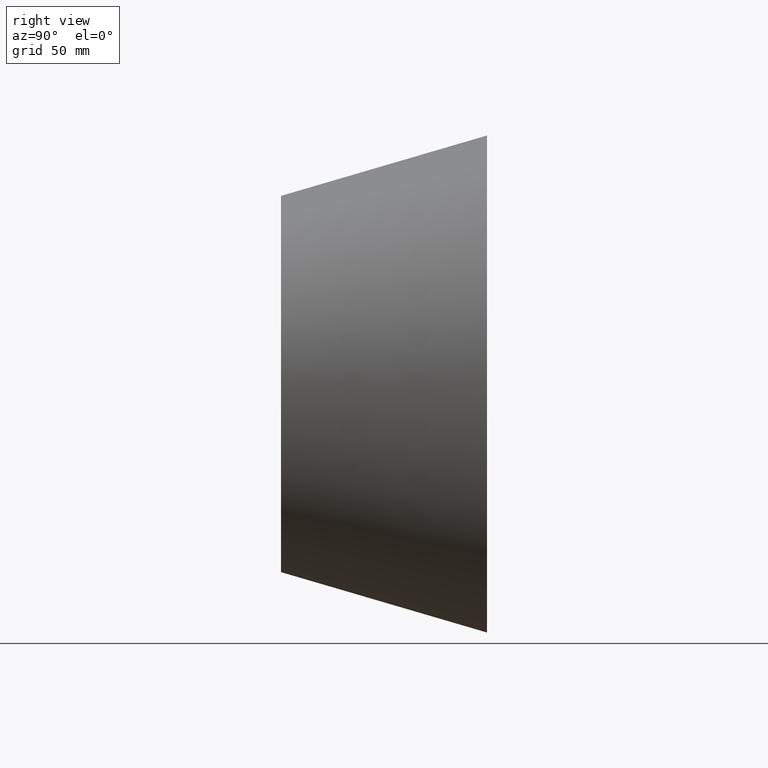
[diagram: clean part render]
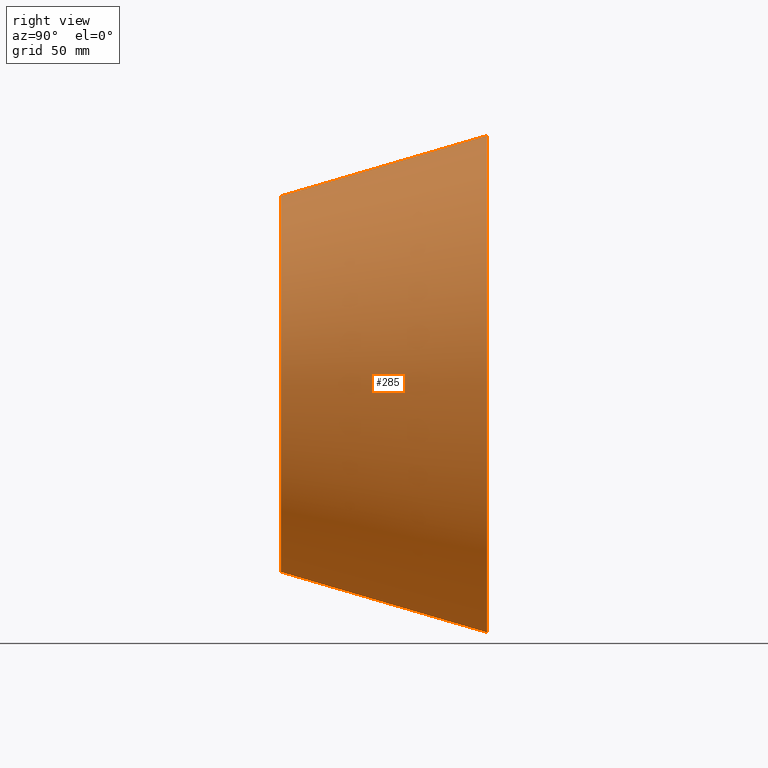
[diagram: same view with one face highlighted and labeled with its STEP entity id]
A machine part, right view. The second image highlights one B-rep face of the part: STEP entity #285.
In plain terms, the highlighted conical surface has half-angle 16.336 deg.
Its self-contained STEP definition (entity closure, byte-faithful):
#10 = VERTEX_POINT ( 'NONE', #46 ) ;
#11 = AXIS2_PLACEMENT_3D ( 'NONE', #272, #89, #288 ) ;
#12 = DIRECTION ( 'NONE',  ( 3.444569382563940100E-017, 0.9596285438852135700, -0.2812704352767004800 ) ) ;
#14 = CIRCLE ( 'NONE', #164, 132.5000000000000000 ) ;
#19 = CARTESIAN_POINT ( 'NONE',  ( 2.143131898507867900E-014, 144.9999999999999400, -175.0000000000000000 ) ) ;
#24 = CIRCLE ( 'NONE', #68, 175.0000000000000000 ) ;
#33 = ORIENTED_EDGE ( 'NONE', *, *, #160, .F. ) ;
#46 = CARTESIAN_POINT ( 'NONE',  ( 2.143131898507867900E-014, 144.9999999999999400, -175.0000000000000000 ) ) ;
#48 = DIRECTION ( 'NONE',  ( -0.0000000000000000000, -1.000000000000000000, -0.0000000000000000000 ) ) ;
#68 = AXIS2_PLACEMENT_3D ( 'NONE', #169, #48, #297 ) ;
#74 = CARTESIAN_POINT ( 'NONE',  ( 0.0000000000000000000, 144.9999999999999400, 175.0000000000000000 ) ) ;
#89 = DIRECTION ( 'NONE',  ( 0.0000000000000000000, 1.000000000000000000, 0.0000000000000000000 ) ) ;
#105 = DIRECTION ( 'NONE',  ( 0.0000000000000000000, 0.0000000000000000000, -1.000000000000000000 ) ) ;
#119 = CARTESIAN_POINT ( 'NONE',  ( 0.0000000000000000000, 144.9999999999999400, 175.0000000000000000 ) ) ;
#132 = FACE_OUTER_BOUND ( 'NONE', #257, .T. ) ;
#138 = DIRECTION ( 'NONE',  ( -0.0000000000000000000, -1.000000000000000000, -0.0000000000000000000 ) ) ;
#143 = VECTOR ( 'NONE', #261, 1000.000000000000100 ) ;
#160 = EDGE_CURVE ( 'NONE', #312, #284, #230, .T. ) ;
#164 = AXIS2_PLACEMENT_3D ( 'NONE', #290, #138, #105 ) ;
#169 = CARTESIAN_POINT ( 'NONE',  ( 0.0000000000000000000, 144.9999999999999400, 0.0000000000000000000 ) ) ;
#170 = EDGE_CURVE ( 'NONE', #318, #312, #14, .T. ) ;
#183 = ORIENTED_EDGE ( 'NONE', *, *, #191, .T. ) ;
#191 = EDGE_CURVE ( 'NONE', #318, #10, #195, .T. ) ;
#195 = LINE ( 'NONE', #19, #277 ) ;
#230 = LINE ( 'NONE', #74, #143 ) ;
#257 = EDGE_LOOP ( 'NONE', ( #323, #183, #265, #33 ) ) ;
#261 = DIRECTION ( 'NONE',  ( 0.0000000000000000000, 0.9596285438852135700, 0.2812704352767004800 ) ) ;
#265 = ORIENTED_EDGE ( 'NONE', *, *, #328, .T. ) ;
#271 = CARTESIAN_POINT ( 'NONE',  ( 0.0000000000000000000, -3.469446951953614200E-015, 132.5000000000000000 ) ) ;
#272 = CARTESIAN_POINT ( 'NONE',  ( 0.0000000000000000000, 144.9999999999999400, 0.0000000000000000000 ) ) ;
#276 = CARTESIAN_POINT ( 'NONE',  ( 1.882894453689055400E-014, -3.469446951953614200E-015, -132.5000000000000000 ) ) ;
#277 = VECTOR ( 'NONE', #12, 1000.000000000000100 ) ;
#284 = VERTEX_POINT ( 'NONE', #119 ) ;
#285 = ADVANCED_FACE ( 'NONE', ( #132 ), #295, .T. ) ;
#288 = DIRECTION ( 'NONE',  ( 0.0000000000000000000, 0.0000000000000000000, 1.000000000000000000 ) ) ;
#290 = CARTESIAN_POINT ( 'NONE',  ( 0.0000000000000000000, -3.469446951953614200E-015, 0.0000000000000000000 ) ) ;
#295 = CONICAL_SURFACE ( 'NONE', #11, 175.0000000000000000, 0.2851177351725961400 ) ;
#297 = DIRECTION ( 'NONE',  ( 0.0000000000000000000, 0.0000000000000000000, -1.000000000000000000 ) ) ;
#312 = VERTEX_POINT ( 'NONE', #271 ) ;
#318 = VERTEX_POINT ( 'NONE', #276 ) ;
#323 = ORIENTED_EDGE ( 'NONE', *, *, #170, .F. ) ;
#328 = EDGE_CURVE ( 'NONE', #10, #284, #24, .T. ) ;